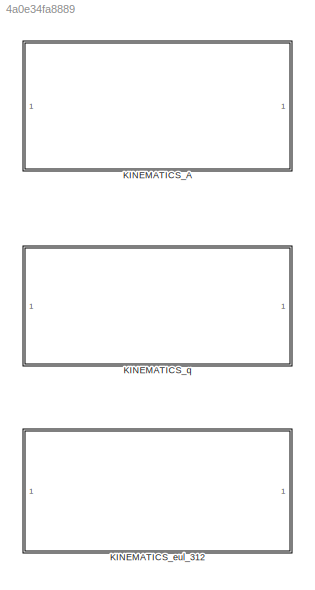
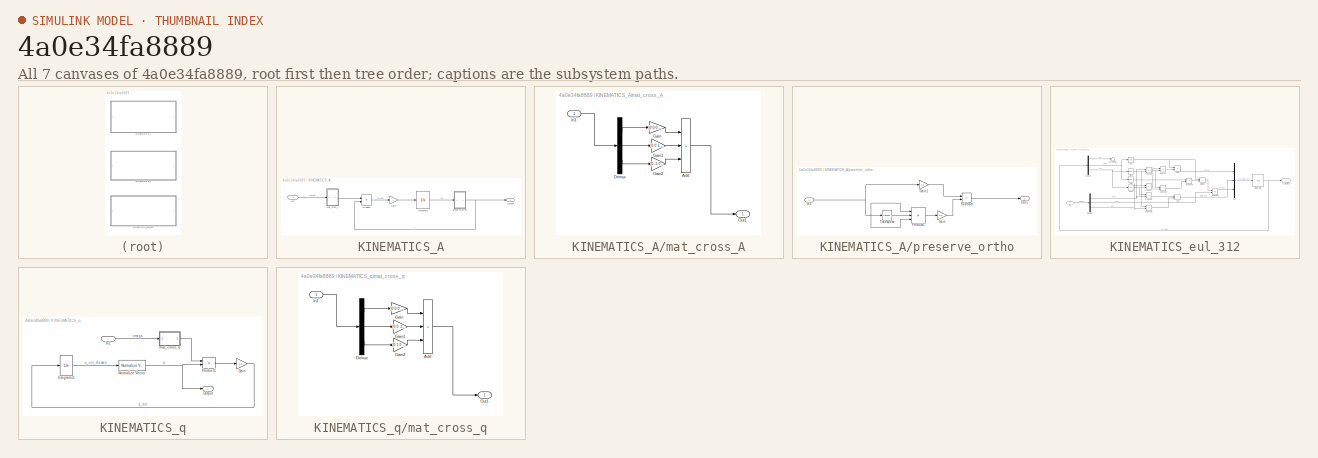
[diagram: thumbnail index - all 7 canvases of the model, root first then tree order]
MODEL slx_4a0e34fa8889
KIND library
CONFIG AbsTol = auto
CONFIG EnableMultiTasking = off
CONFIG FixedStep = auto
CONFIG MaxStep = auto
CONFIG MinStep = auto
CONFIG RelTol = 1e-3
CONFIG SampleTimeConstraint = Unconstrained
CONFIG SolverName = VariableStepAuto
CONFIG StartTime = 0.0
CONFIG StopTime = 10.0
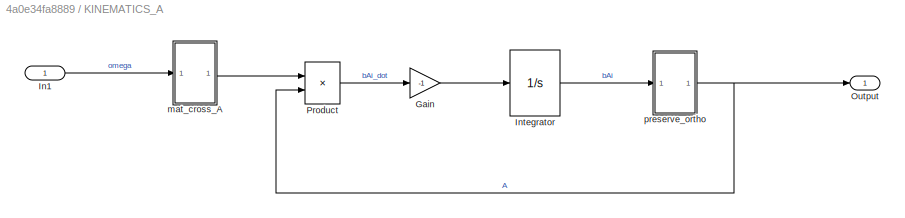
BLOCK [SubSystem] KINEMATICS_A
  Ports = [1, 1]
  RequestExecContextInheritance = off
BLOCK [Gain] KINEMATICS_A/Gain
  Gain = -1
BLOCK [Inport] KINEMATICS_A/In1
  IconDisplay = Signal name
BLOCK [Integrator] KINEMATICS_A/Integrator
  InitialCondition = A0
  Ports = [1, 1]
BLOCK [Outport] KINEMATICS_A/Output
  IconDisplay = Signal name
BLOCK [Product] KINEMATICS_A/Product
  Multiplication = Matrix(*)
  Ports = [2, 1]
BLOCK [SubSystem] KINEMATICS_A/mat_cross_A
  Ports = [1, 1]
  RequestExecContextInheritance = off
BLOCK [Sum] KINEMATICS_A/mat_cross_A/Add
  IconShape = rectangular
  Inputs = +++
  Ports = [3, 1]
BLOCK [Demux] KINEMATICS_A/mat_cross_A/Demux
  Outputs = 3
  Ports = [1, 3]
BLOCK [Gain] KINEMATICS_A/mat_cross_A/Gain
  Gain = [0 0 0; 0 0 -1; 0 1 0]
BLOCK [Gain] KINEMATICS_A/mat_cross_A/Gain1
  Gain = [0 0 1; 0 0 0; -1 0 0]
BLOCK [Gain] KINEMATICS_A/mat_cross_A/Gain2
  Gain = [0 -1 0; 1 0 0; 0 0 0]
BLOCK [Inport] KINEMATICS_A/mat_cross_A/In1
BLOCK [Outport] KINEMATICS_A/mat_cross_A/Out1
BLOCK [SubSystem] KINEMATICS_A/preserve_ortho
  Ports = [1, 1]
  RequestExecContextInheritance = off
BLOCK [Gain] KINEMATICS_A/preserve_ortho/Gain
  Gain = 0.5
BLOCK [Gain] KINEMATICS_A/preserve_ortho/Gain1
  Gain = 1.5
BLOCK [Inport] KINEMATICS_A/preserve_ortho/In1
BLOCK [Outport] KINEMATICS_A/preserve_ortho/Out1
BLOCK [Product] KINEMATICS_A/preserve_ortho/Product1
  Inputs = 3
  Multiplication = Matrix(*)
  Ports = [3, 1]
BLOCK [Sum] KINEMATICS_A/preserve_ortho/Subtract
  IconShape = rectangular
  Inputs = +-
  Ports = [2, 1]
BLOCK [Math] KINEMATICS_A/preserve_ortho/Transpose
  Operator = transpose
  Ports = [1, 1]
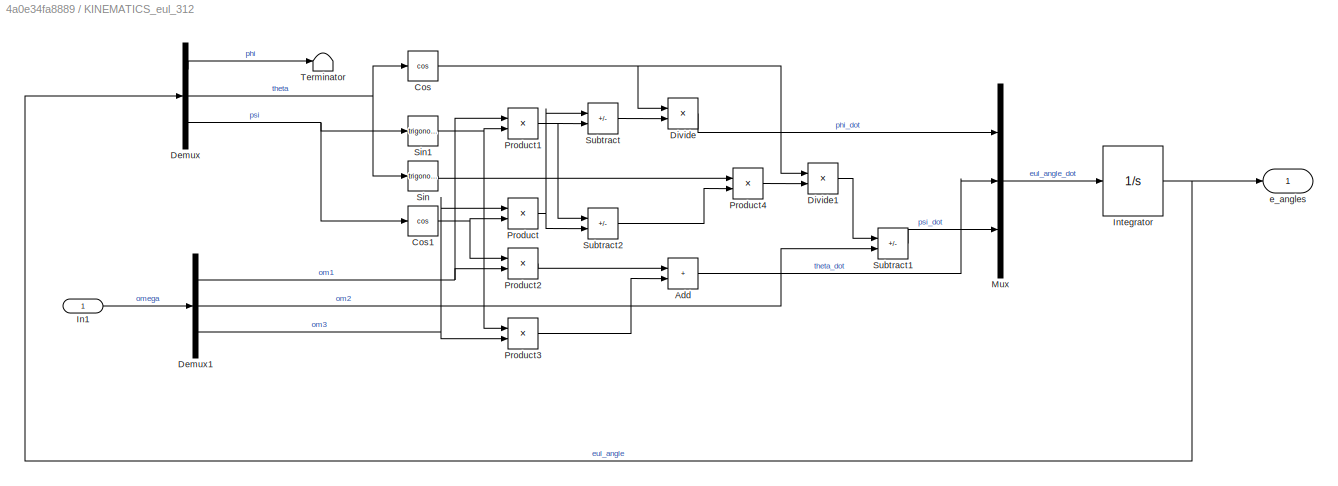
BLOCK [SubSystem] KINEMATICS_eul_312
  Ports = [1, 1]
  RequestExecContextInheritance = off
BLOCK [Sum] KINEMATICS_eul_312/Add
  IconShape = rectangular
  Ports = [2, 1]
BLOCK [Trigonometry] KINEMATICS_eul_312/Cos
  Operator = cos
  Ports = [1, 1]
BLOCK [Trigonometry] KINEMATICS_eul_312/Cos1
  Operator = cos
  Ports = [1, 1]
BLOCK [Demux] KINEMATICS_eul_312/Demux
  Outputs = 3
  Ports = [1, 3]
BLOCK [Demux] KINEMATICS_eul_312/Demux1
  Outputs = 3
  Ports = [1, 3]
BLOCK [Product] KINEMATICS_eul_312/Divide
  Inputs = /*
  Ports = [2, 1]
BLOCK [Product] KINEMATICS_eul_312/Divide1
  Inputs = /*
  Ports = [2, 1]
BLOCK [Inport] KINEMATICS_eul_312/In1
  IconDisplay = Signal name
BLOCK [Integrator] KINEMATICS_eul_312/Integrator
  InitialCondition = e_angles0
  Ports = [1, 1]
BLOCK [Mux] KINEMATICS_eul_312/Mux
  DisplayOption = bar
  Inputs = 3
  Ports = [3, 1]
BLOCK [Product] KINEMATICS_eul_312/Product
  Ports = [2, 1]
BLOCK [Product] KINEMATICS_eul_312/Product1
  Ports = [2, 1]
BLOCK [Product] KINEMATICS_eul_312/Product2
  Ports = [2, 1]
BLOCK [Product] KINEMATICS_eul_312/Product3
  Ports = [2, 1]
BLOCK [Product] KINEMATICS_eul_312/Product4
  Ports = [2, 1]
BLOCK [Trigonometry] KINEMATICS_eul_312/Sin
  Ports = [1, 1]
BLOCK [Trigonometry] KINEMATICS_eul_312/Sin1
  Ports = [1, 1]
BLOCK [Sum] KINEMATICS_eul_312/Subtract
  IconShape = rectangular
  Inputs = +-
  Ports = [2, 1]
BLOCK [Sum] KINEMATICS_eul_312/Subtract1
  IconShape = rectangular
  Inputs = -+
  Ports = [2, 1]
BLOCK [Sum] KINEMATICS_eul_312/Subtract2
  IconShape = rectangular
  Inputs = -+
  Ports = [2, 1]
BLOCK [Terminator] KINEMATICS_eul_312/Terminator
BLOCK [Outport] KINEMATICS_eul_312/e_angles
  IconDisplay = Signal name
BLOCK [SubSystem] KINEMATICS_q
  Ports = [1, 1]
  RequestExecContextInheritance = off
BLOCK [Gain] KINEMATICS_q/Gain
  Gain = 0.5
BLOCK [Inport] KINEMATICS_q/In1
  IconDisplay = Signal name
BLOCK [Integrator] KINEMATICS_q/Integrator1
  InitialCondition = q0
  Ports = [1, 1]
BLOCK [Reference] KINEMATICS_q/Normalize Vector  REF=vrlib/Utilities/Normalize Vector
  Ports = [1, 1]
  SourceBlock = vrlib/Utilities/Normalize Vector
  SourceProductBaseCode = SL
  SourceType = Normalize Vector
BLOCK [Outport] KINEMATICS_q/Output
  IconDisplay = Signal name
BLOCK [Product] KINEMATICS_q/Product1
  Multiplication = Matrix(*)
  Ports = [2, 1]
BLOCK [SubSystem] KINEMATICS_q/mat_cross_q
  Ports = [1, 1]
  RequestExecContextInheritance = off
BLOCK [Sum] KINEMATICS_q/mat_cross_q/Add
  IconShape = rectangular
  Inputs = +++
  Ports = [3, 1]
BLOCK [Demux] KINEMATICS_q/mat_cross_q/Demux
  Outputs = 3
  Ports = [1, 3]
BLOCK [Gain] KINEMATICS_q/mat_cross_q/Gain
  Gain = [0 0 0 1; 0 0 1 0; 0 -1 0 0; -1 0 0 0]
BLOCK [Gain] KINEMATICS_q/mat_cross_q/Gain1
  Gain = [0 0 -1 0; 0 0 0 1; 1 0 0 0; 0 -1 0 0]
BLOCK [Gain] KINEMATICS_q/mat_cross_q/Gain2
  Gain = [0 1 0 0; -1 0 0 0; 0 0 0 1; 0 0 -1 0]
BLOCK [Inport] KINEMATICS_q/mat_cross_q/In1
BLOCK [Outport] KINEMATICS_q/mat_cross_q/Out1
LINE KINEMATICS_A/Gain:1 -> KINEMATICS_A/Integrator:1
LINE KINEMATICS_A/In1:1 -> KINEMATICS_A/mat_cross_A:1
LINE KINEMATICS_A/Integrator:1 -> KINEMATICS_A/preserve_ortho:1
LINE KINEMATICS_A/Product:1 -> KINEMATICS_A/Gain:1
LINE KINEMATICS_A/mat_cross_A/Add:1 -> KINEMATICS_A/mat_cross_A/Out1:1
LINE KINEMATICS_A/mat_cross_A/Demux:1 -> KINEMATICS_A/mat_cross_A/Gain:1
LINE KINEMATICS_A/mat_cross_A/Demux:2 -> KINEMATICS_A/mat_cross_A/Gain1:1
LINE KINEMATICS_A/mat_cross_A/Demux:3 -> KINEMATICS_A/mat_cross_A/Gain2:1
LINE KINEMATICS_A/mat_cross_A/Gain1:1 -> KINEMATICS_A/mat_cross_A/Add:2
LINE KINEMATICS_A/mat_cross_A/Gain2:1 -> KINEMATICS_A/mat_cross_A/Add:3
LINE KINEMATICS_A/mat_cross_A/Gain:1 -> KINEMATICS_A/mat_cross_A/Add:1
LINE KINEMATICS_A/mat_cross_A/In1:1 -> KINEMATICS_A/mat_cross_A/Demux:1
LINE KINEMATICS_A/mat_cross_A:1 -> KINEMATICS_A/Product:1
LINE KINEMATICS_A/preserve_ortho/Gain1:1 -> KINEMATICS_A/preserve_ortho/Subtract:1
LINE KINEMATICS_A/preserve_ortho/Gain:1 -> KINEMATICS_A/preserve_ortho/Subtract:2
NET KINEMATICS_A/preserve_ortho/In1:1 -> KINEMATICS_A/preserve_ortho/Gain1:1, KINEMATICS_A/preserve_ortho/Product1:1, KINEMATICS_A/preserve_ortho/Product1:3, KINEMATICS_A/preserve_ortho/Transpose:1
LINE KINEMATICS_A/preserve_ortho/Product1:1 -> KINEMATICS_A/preserve_ortho/Gain:1
LINE KINEMATICS_A/preserve_ortho/Subtract:1 -> KINEMATICS_A/preserve_ortho/Out1:1
LINE KINEMATICS_A/preserve_ortho/Transpose:1 -> KINEMATICS_A/preserve_ortho/Product1:2
NET KINEMATICS_A/preserve_ortho:1 -> KINEMATICS_A/Output:1, KINEMATICS_A/Product:2
LINE KINEMATICS_eul_312/Add:1 -> KINEMATICS_eul_312/Mux:2
NET KINEMATICS_eul_312/Cos1:1 -> KINEMATICS_eul_312/Product2:1, KINEMATICS_eul_312/Product:2
NET KINEMATICS_eul_312/Cos:1 -> KINEMATICS_eul_312/Divide1:1, KINEMATICS_eul_312/Divide:1
NET KINEMATICS_eul_312/Demux1:1 -> KINEMATICS_eul_312/Product1:1, KINEMATICS_eul_312/Product2:2
LINE KINEMATICS_eul_312/Demux1:2 -> KINEMATICS_eul_312/Subtract1:2
NET KINEMATICS_eul_312/Demux1:3 -> KINEMATICS_eul_312/Product3:2, KINEMATICS_eul_312/Product:1
LINE KINEMATICS_eul_312/Demux:1 -> KINEMATICS_eul_312/Terminator:1
NET KINEMATICS_eul_312/Demux:2 -> KINEMATICS_eul_312/Cos:1, KINEMATICS_eul_312/Sin:1
NET KINEMATICS_eul_312/Demux:3 -> KINEMATICS_eul_312/Cos1:1, KINEMATICS_eul_312/Sin1:1
LINE KINEMATICS_eul_312/Divide1:1 -> KINEMATICS_eul_312/Subtract1:1
LINE KINEMATICS_eul_312/Divide:1 -> KINEMATICS_eul_312/Mux:1
LINE KINEMATICS_eul_312/In1:1 -> KINEMATICS_eul_312/Demux1:1
NET KINEMATICS_eul_312/Integrator:1 -> KINEMATICS_eul_312/Demux:1, KINEMATICS_eul_312/e_angles:1
LINE KINEMATICS_eul_312/Mux:1 -> KINEMATICS_eul_312/Integrator:1
NET KINEMATICS_eul_312/Product1:1 -> KINEMATICS_eul_312/Subtract2:1, KINEMATICS_eul_312/Subtract:2
LINE KINEMATICS_eul_312/Product2:1 -> KINEMATICS_eul_312/Add:1
LINE KINEMATICS_eul_312/Product3:1 -> KINEMATICS_eul_312/Add:2
LINE KINEMATICS_eul_312/Product4:1 -> KINEMATICS_eul_312/Divide1:2
NET KINEMATICS_eul_312/Product:1 -> KINEMATICS_eul_312/Subtract2:2, KINEMATICS_eul_312/Subtract:1
NET KINEMATICS_eul_312/Sin1:1 -> KINEMATICS_eul_312/Product1:2, KINEMATICS_eul_312/Product3:1
LINE KINEMATICS_eul_312/Sin:1 -> KINEMATICS_eul_312/Product4:1
LINE KINEMATICS_eul_312/Subtract1:1 -> KINEMATICS_eul_312/Mux:3
LINE KINEMATICS_eul_312/Subtract2:1 -> KINEMATICS_eul_312/Product4:2
LINE KINEMATICS_eul_312/Subtract:1 -> KINEMATICS_eul_312/Divide:2
LINE KINEMATICS_q/Gain:1 -> KINEMATICS_q/Integrator1:1
LINE KINEMATICS_q/In1:1 -> KINEMATICS_q/mat_cross_q:1
LINE KINEMATICS_q/Integrator1:1 -> KINEMATICS_q/Normalize Vector:1
NET KINEMATICS_q/Normalize Vector:1 -> KINEMATICS_q/Output:1, KINEMATICS_q/Product1:2
LINE KINEMATICS_q/Product1:1 -> KINEMATICS_q/Gain:1
LINE KINEMATICS_q/mat_cross_q/Add:1 -> KINEMATICS_q/mat_cross_q/Out1:1
LINE KINEMATICS_q/mat_cross_q/Demux:1 -> KINEMATICS_q/mat_cross_q/Gain:1
LINE KINEMATICS_q/mat_cross_q/Demux:2 -> KINEMATICS_q/mat_cross_q/Gain1:1
LINE KINEMATICS_q/mat_cross_q/Demux:3 -> KINEMATICS_q/mat_cross_q/Gain2:1
LINE KINEMATICS_q/mat_cross_q/Gain1:1 -> KINEMATICS_q/mat_cross_q/Add:2
LINE KINEMATICS_q/mat_cross_q/Gain2:1 -> KINEMATICS_q/mat_cross_q/Add:3
LINE KINEMATICS_q/mat_cross_q/Gain:1 -> KINEMATICS_q/mat_cross_q/Add:1
LINE KINEMATICS_q/mat_cross_q/In1:1 -> KINEMATICS_q/mat_cross_q/Demux:1
LINE KINEMATICS_q/mat_cross_q:1 -> KINEMATICS_q/Product1:1
note: NET lines group one-source signal fan-out (src -> all destinations, sorted); 1:1 wires keep LINE
